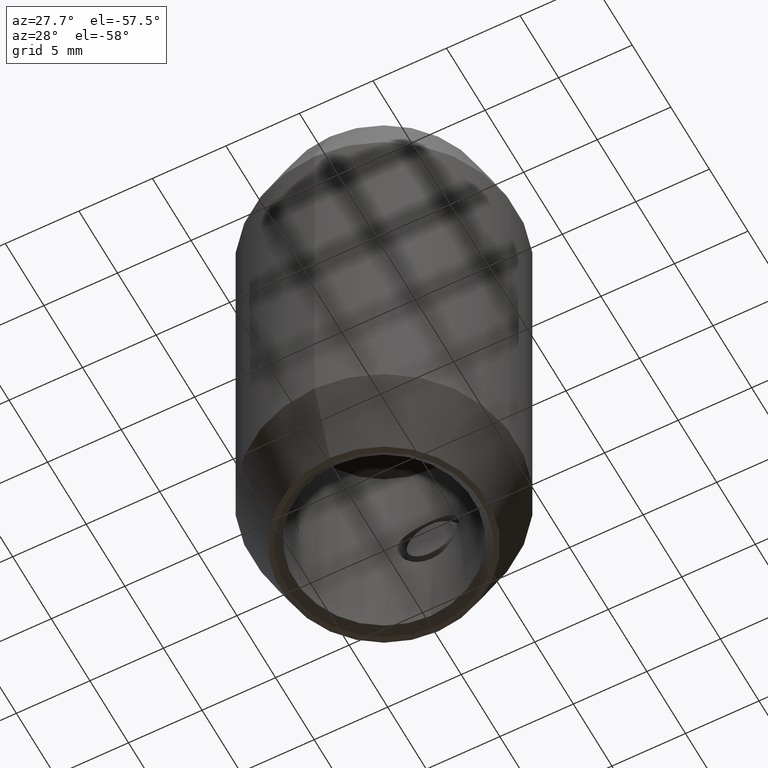
[diagram: clean part render]
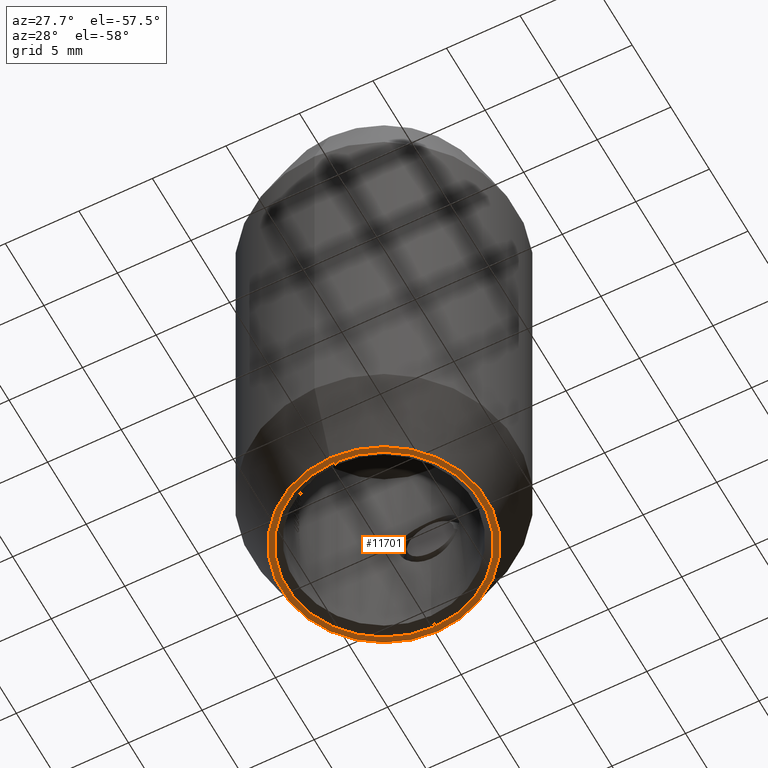
[diagram: same view with one face highlighted and labeled with its STEP entity id]
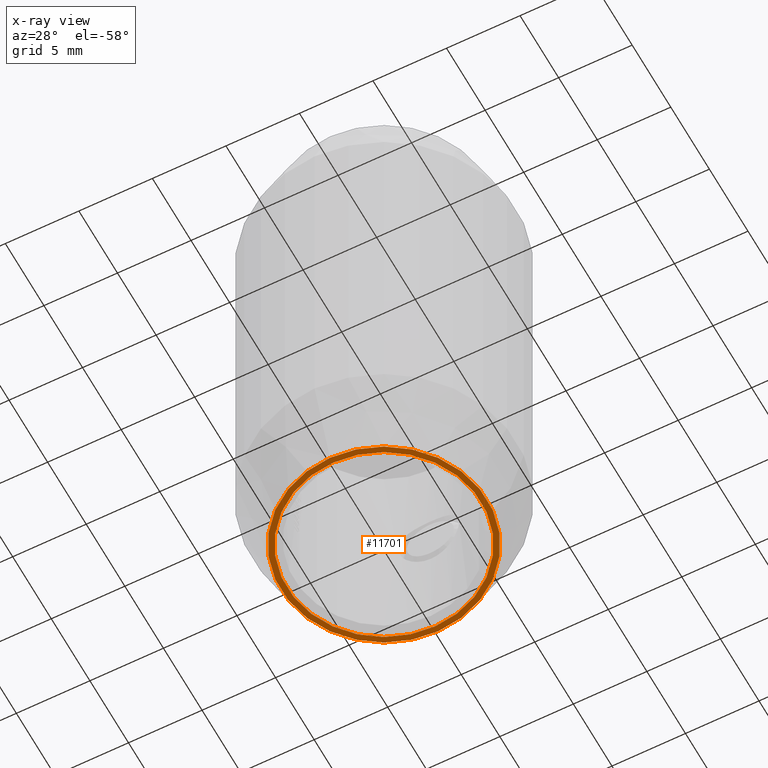
[diagram: x-ray of the same camera — body ghosted, the highlighted face saturated]
A machine part, auxiliary view. The second image highlights one B-rep face of the part: STEP entity #11701.
The next image is the same camera in x-ray: the body ghosted, the highlighted face saturated — about 0% of this face is hidden behind the body in this view.
In plain terms, the highlighted planar face has unit normal (0, -0, 1).
Its self-contained STEP definition (entity closure, byte-faithful):
#666 = FACE_OUTER_BOUND ( 'NONE', #9618, .T. ) ;
#710 = PLANE ( 'NONE',  #4576 ) ;
#814 = DIRECTION ( 'NONE',  ( 0.000000000000000000, -1.000000000000000000, 0.000000000000000000 ) ) ;
#944 = EDGE_CURVE ( 'NONE', #6806, #10163, #3214, .T. ) ;
#1427 = CIRCLE ( 'NONE', #7054, 7.000000000000000000 ) ;
#1530 = EDGE_CURVE ( 'NONE', #9449, #6045, #1427, .T. ) ;
#2166 = ORIENTED_EDGE ( 'NONE', *, *, #1530, .F. ) ;
#2750 = CARTESIAN_POINT ( 'NONE',  ( 0.000000000000000000, 3.851859888774471706E-31, -18.00000000000000000 ) ) ;
#2901 = DIRECTION ( 'NONE',  ( -0.000000000000000000, -2.139922160430262120E-32, 1.000000000000000000 ) ) ;
#3214 = CIRCLE ( 'NONE', #4644, 6.599999999999991651 ) ;
#3264 = CIRCLE ( 'NONE', #6007, 7.000000000000000000 ) ;
#4074 = ORIENTED_EDGE ( 'NONE', *, *, #6659, .F. ) ;
#4213 = DIRECTION ( 'NONE',  ( -0.000000000000000000, -2.139922160430262120E-32, 1.000000000000000000 ) ) ;
#4576 = AXIS2_PLACEMENT_3D ( 'NONE', #5275, #9777, #12219 ) ;
#4644 = AXIS2_PLACEMENT_3D ( 'NONE', #13196, #2901, #10904 ) ;
#5275 = CARTESIAN_POINT ( 'NONE',  ( 0.000000000000000000, 6.099999999999999645, -18.00000000000000000 ) ) ;
#5289 = ORIENTED_EDGE ( 'NONE', *, *, #11183, .T. ) ;
#5999 = CARTESIAN_POINT ( 'NONE',  ( 0.000000000000000000, 6.599999999999991651, -18.00000000000000000 ) ) ;
#6007 = AXIS2_PLACEMENT_3D ( 'NONE', #9944, #4213, #814 ) ;
#6045 = VERTEX_POINT ( 'NONE', #9388 ) ;
#6270 = DIRECTION ( 'NONE',  ( -0.000000000000000000, -2.139922160430262120E-32, 1.000000000000000000 ) ) ;
#6659 = EDGE_CURVE ( 'NONE', #6045, #9449, #3264, .T. ) ;
#6806 = VERTEX_POINT ( 'NONE', #14155 ) ;
#6882 = CARTESIAN_POINT ( 'NONE',  ( 9.797174393178827630E-16, 7.000000000000000000, -18.00000000000000000 ) ) ;
#7054 = AXIS2_PLACEMENT_3D ( 'NONE', #13313, #12278, #14595 ) ;
#7867 = FACE_BOUND ( 'NONE', #9825, .T. ) ;
#9388 = CARTESIAN_POINT ( 'NONE',  ( 0.000000000000000000, -7.000000000000000000, -18.00000000000000000 ) ) ;
#9449 = VERTEX_POINT ( 'NONE', #6882 ) ;
#9618 = EDGE_LOOP ( 'NONE', ( #4074, #2166 ) ) ;
#9777 = DIRECTION ( 'NONE',  ( 0.000000000000000000, -2.139922160430262120E-32, 1.000000000000000000 ) ) ;
#9825 = EDGE_LOOP ( 'NONE', ( #5289, #13691 ) ) ;
#9933 = AXIS2_PLACEMENT_3D ( 'NONE', #2750, #6270, #11907 ) ;
#9944 = CARTESIAN_POINT ( 'NONE',  ( 0.000000000000000000, 3.851859888774471706E-31, -18.00000000000000000 ) ) ;
#10163 = VERTEX_POINT ( 'NONE', #5999 ) ;
#10904 = DIRECTION ( 'NONE',  ( 0.000000000000000000, -1.000000000000000000, 0.000000000000000000 ) ) ;
#11183 = EDGE_CURVE ( 'NONE', #10163, #6806, #13995, .T. ) ;
#11701 = ADVANCED_FACE ( 'NONE', ( #7867, #666 ), #710, .F. ) ;
#11907 = DIRECTION ( 'NONE',  ( 0.000000000000000000, -1.000000000000000000, 0.000000000000000000 ) ) ;
#12219 = DIRECTION ( 'NONE',  ( 0.000000000000000000, -1.000000000000000000, -2.139922160430262120E-32 ) ) ;
#12278 = DIRECTION ( 'NONE',  ( -0.000000000000000000, -2.139922160430262120E-32, 1.000000000000000000 ) ) ;
#13196 = CARTESIAN_POINT ( 'NONE',  ( 0.000000000000000000, 3.851859888774471706E-31, -18.00000000000000000 ) ) ;
#13313 = CARTESIAN_POINT ( 'NONE',  ( 0.000000000000000000, 3.851859888774471706E-31, -18.00000000000000000 ) ) ;
#13691 = ORIENTED_EDGE ( 'NONE', *, *, #944, .T. ) ;
#13995 = CIRCLE ( 'NONE', #9933, 6.599999999999991651 ) ;
#14155 = CARTESIAN_POINT ( 'NONE',  ( 8.082668874372520173E-16, -6.599999999999991651, -18.00000000000000000 ) ) ;
#14595 = DIRECTION ( 'NONE',  ( 0.000000000000000000, -1.000000000000000000, 0.000000000000000000 ) ) ;